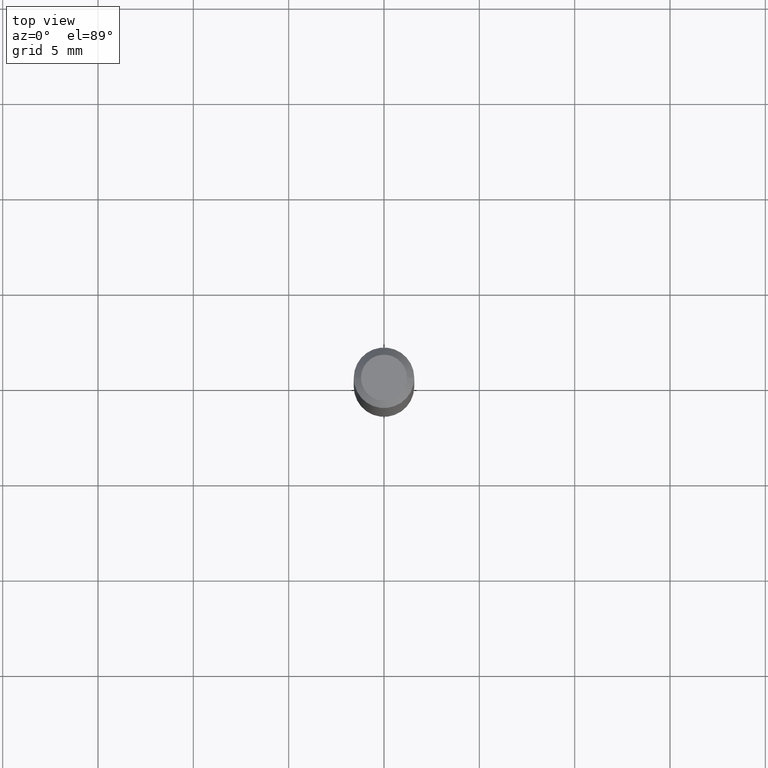
[diagram: clean part render]
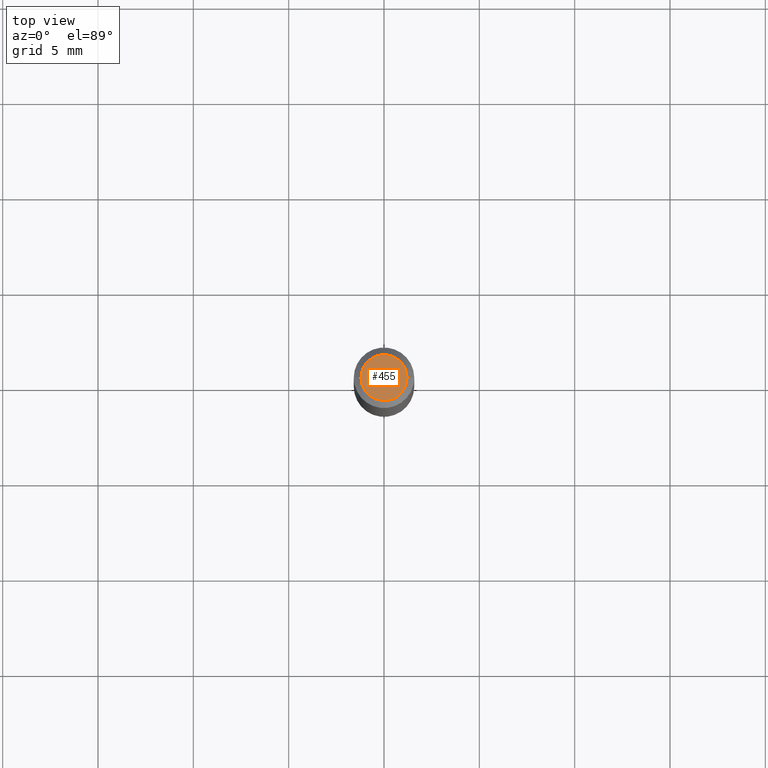
[diagram: same view with one face highlighted and labeled with its STEP entity id]
A machine part, top view. The second image highlights one B-rep face of the part: STEP entity #455.
In plain terms, the highlighted planar face has unit normal (0, -0, -1).
Its self-contained STEP definition (entity closure, byte-faithful):
#10 = VERTEX_POINT ( 'NONE', #103 ) ;
#15 = CIRCLE ( 'NONE', #327, 0.04749999999999999362 ) ;
#16 = DIRECTION ( 'NONE',  ( 1.000000000000000000, -6.982962677686267499E-15, 4.852736867747366768E-29 ) ) ;
#38 = AXIS2_PLACEMENT_3D ( 'NONE', #104, #72, #398 ) ;
#66 = CARTESIAN_POINT ( 'NONE',  ( -0.04749999999999999362, 3.578768372314206562E-16, -2.412092357106787927E-16 ) ) ;
#72 = DIRECTION ( 'NONE',  ( 2.438088387897960049E-29, -3.491481338843145188E-15, -1.000000000000000000 ) ) ;
#77 = DIRECTION ( 'NONE',  ( -2.445468806185136597E-29, 3.491481338843145583E-15, 1.000000000000000000 ) ) ;
#103 = CARTESIAN_POINT ( 'NONE',  ( 0.04749999999999999362, -4.035134999187582567E-16, -2.412092357106738130E-16 ) ) ;
#104 = CARTESIAN_POINT ( 'NONE',  ( 3.316907271900976096E-16, 0.04749999999999999362, -2.864499814503876342E-16 ) ) ;
#163 = AXIS2_PLACEMENT_3D ( 'NONE', #457, #203, #227 ) ;
#167 = EDGE_LOOP ( 'NONE', ( #443, #288 ) ) ;
#175 = PLANE ( 'NONE',  #38 ) ;
#202 = EDGE_CURVE ( 'NONE', #277, #10, #15, .T. ) ;
#203 = DIRECTION ( 'NONE',  ( -2.445468806185136597E-29, 3.491481338843145583E-15, 1.000000000000000000 ) ) ;
#219 = CIRCLE ( 'NONE', #163, 0.04749999999999999362 ) ;
#227 = DIRECTION ( 'NONE',  ( 1.000000000000000000, -6.982962677686267499E-15, 4.852736867747366768E-29 ) ) ;
#277 = VERTEX_POINT ( 'NONE', #66 ) ;
#288 = ORIENTED_EDGE ( 'NONE', *, *, #331, .T. ) ;
#327 = AXIS2_PLACEMENT_3D ( 'NONE', #370, #77, #16 ) ;
#331 = EDGE_CURVE ( 'NONE', #10, #277, #219, .T. ) ;
#370 = CARTESIAN_POINT ( 'NONE',  ( 5.898696616942170633E-45, -8.421775452404442847E-31, -2.412092357106764261E-16 ) ) ;
#398 = DIRECTION ( 'NONE',  ( -1.000000000000000000, 6.982962677686265922E-15, -4.876176775795935793E-29 ) ) ;
#434 = FACE_OUTER_BOUND ( 'NONE', #167, .T. ) ;
#443 = ORIENTED_EDGE ( 'NONE', *, *, #202, .T. ) ;
#455 = ADVANCED_FACE ( 'NONE', ( #434 ), #175, .F. ) ;
#457 = CARTESIAN_POINT ( 'NONE',  ( 5.898696616942170633E-45, -8.421775452404442847E-31, -2.412092357106764261E-16 ) ) ;